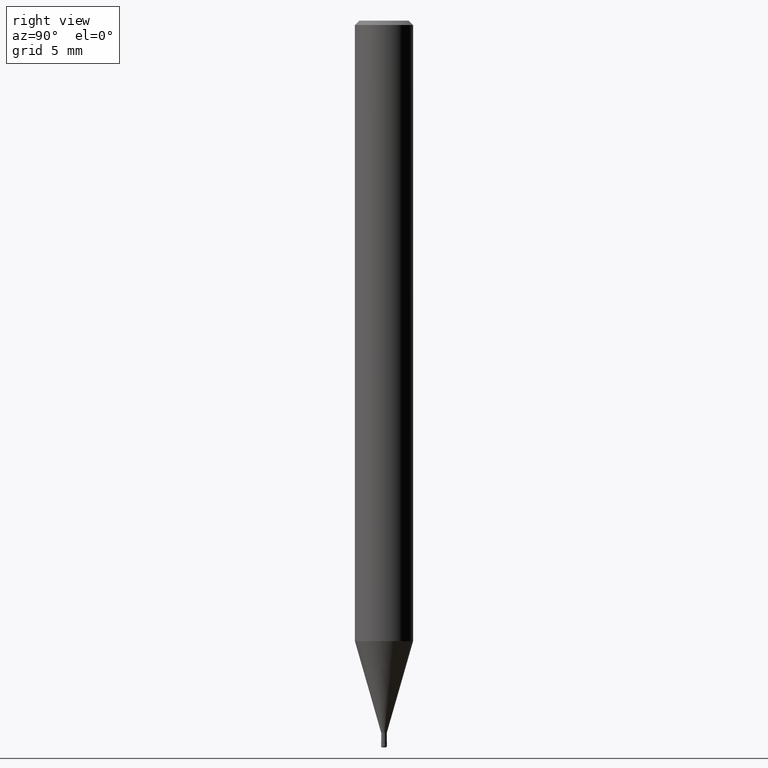
[diagram: clean part render]
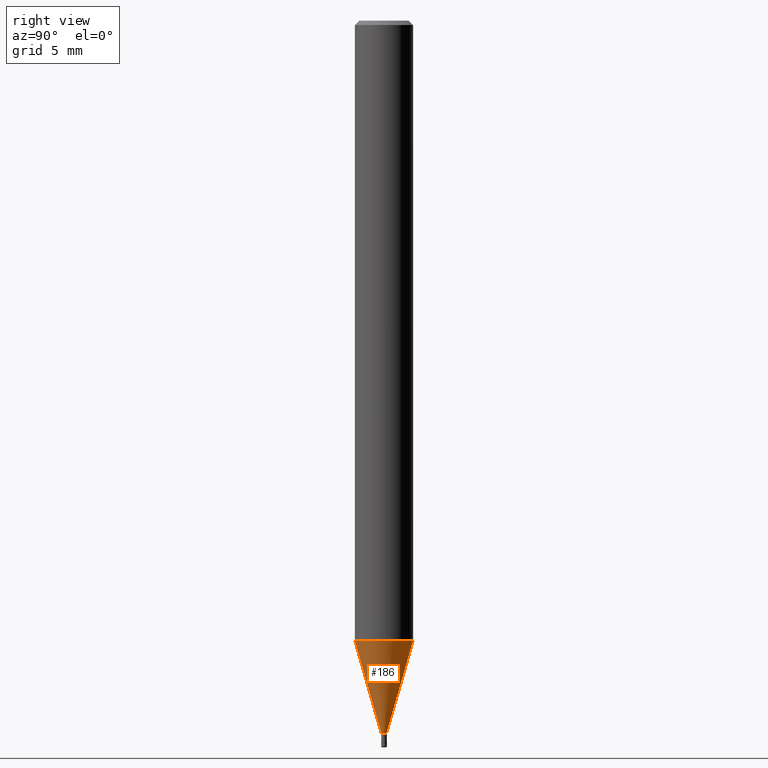
[diagram: same view with one face highlighted and labeled with its STEP entity id]
A machine part, right view. The second image highlights one B-rep face of the part: STEP entity #186.
In plain terms, the highlighted conical surface has half-angle 16.001 deg.
Its self-contained STEP definition (entity closure, byte-faithful):
#108=EDGE_CURVE('',#208,#148,#262,.T.);
#126=EDGE_CURVE('',#172,#208,#284,.T.);
#132=EDGE_CURVE('',#232,#148,#290,.T.);
#148=VERTEX_POINT('',#306);
#172=VERTEX_POINT('',#332);
#186=ADVANCED_FACE('',(#350),#351,.T.);
#192=EDGE_CURVE('',#232,#172,#358,.T.);
#208=VERTEX_POINT('',#376);
#232=VERTEX_POINT('',#403);
#262=LINE('',#425,#426);
#284=CIRCLE('',#454,0.18995);
#290=CIRCLE('',#464,1.99995);
#306=CARTESIAN_POINT('',(2.44915147732706E-016,-1.99995,-42.688));
#332=CARTESIAN_POINT('',(0.0,0.18995,-49.0));
#350=FACE_OUTER_BOUND('',#537,.T.);
#351=CONICAL_SURFACE('',#538,1.09495,0.279261921280279);
#358=LINE('',#547,#548);
#376=CARTESIAN_POINT('',(2.3261397690856E-017,-0.18995,-49.0));
#403=CARTESIAN_POINT('',(0.0,1.99995,-42.688));
#425=CARTESIAN_POINT('',(1.34088272711781E-016,-1.09495,-45.844));
#426=VECTOR('',#613,1.0);
#454=AXIS2_PLACEMENT_3D('',#646,#647,#648);
#464=AXIS2_PLACEMENT_3D('',#653,#654,#655);
#537=EDGE_LOOP('',(#726,#727,#728,#729));
#538=AXIS2_PLACEMENT_3D('',#730,#731,#732);
#547=CARTESIAN_POINT('',(-1.34088272711781E-016,1.09495,-45.844));
#548=VECTOR('',#744,1.0);
#613=DIRECTION('',(3.37558135426109E-017,-0.275646238787252,0.961259148743169));
#646=CARTESIAN_POINT('',(0.0,0.0,-49.0));
#647=DIRECTION('',(0.0,0.0,-1.0));
#648=DIRECTION('',(0.0,1.0,0.0));
#653=CARTESIAN_POINT('',(0.0,0.0,-42.688));
#654=DIRECTION('',(0.0,0.0,-1.0));
#655=DIRECTION('',(0.0,1.0,0.0));
#726=ORIENTED_EDGE('',*,*,#192,.F.);
#727=ORIENTED_EDGE('',*,*,#132,.T.);
#728=ORIENTED_EDGE('',*,*,#108,.F.);
#729=ORIENTED_EDGE('',*,*,#126,.F.);
#730=CARTESIAN_POINT('',(0.0,0.0,-45.844));
#731=DIRECTION('',(-0.0,-0.0,1.0));
#732=DIRECTION('',(0.0,1.0,0.0));
#744=DIRECTION('',(3.37558135426109E-017,-0.275646238787252,-0.961259148743169));